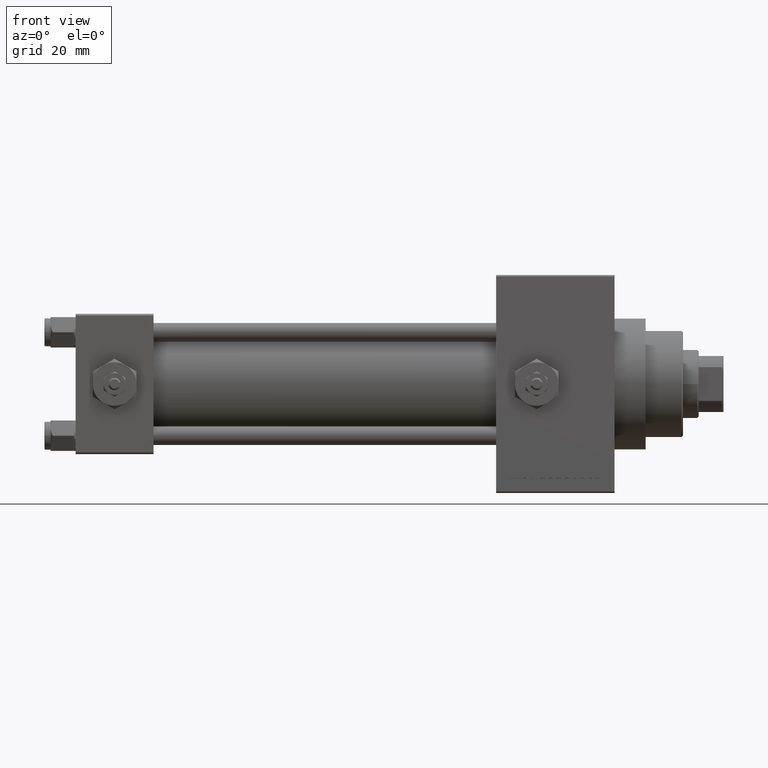
[diagram: clean part render]
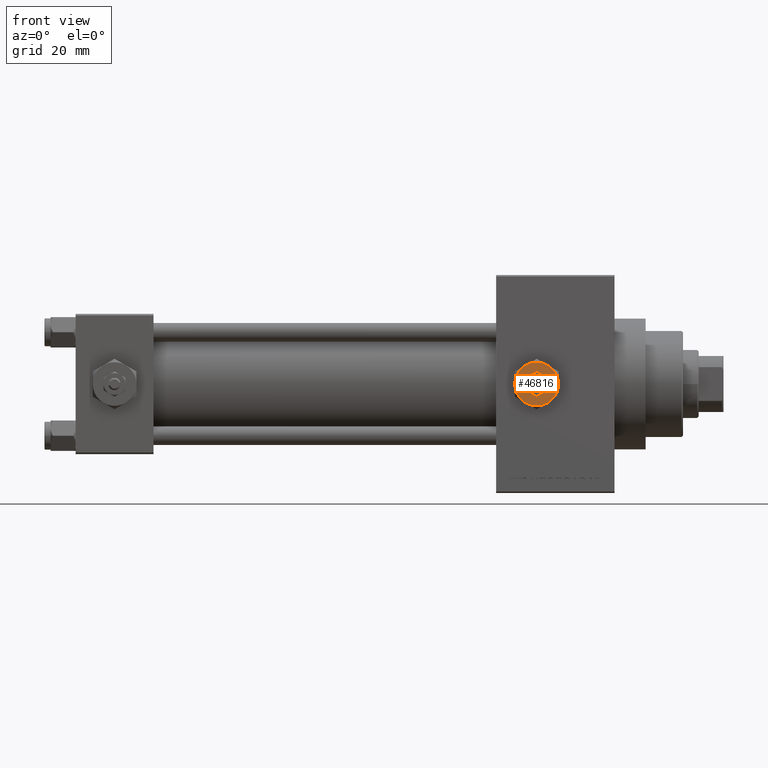
[diagram: same view with one face highlighted and labeled with its STEP entity id]
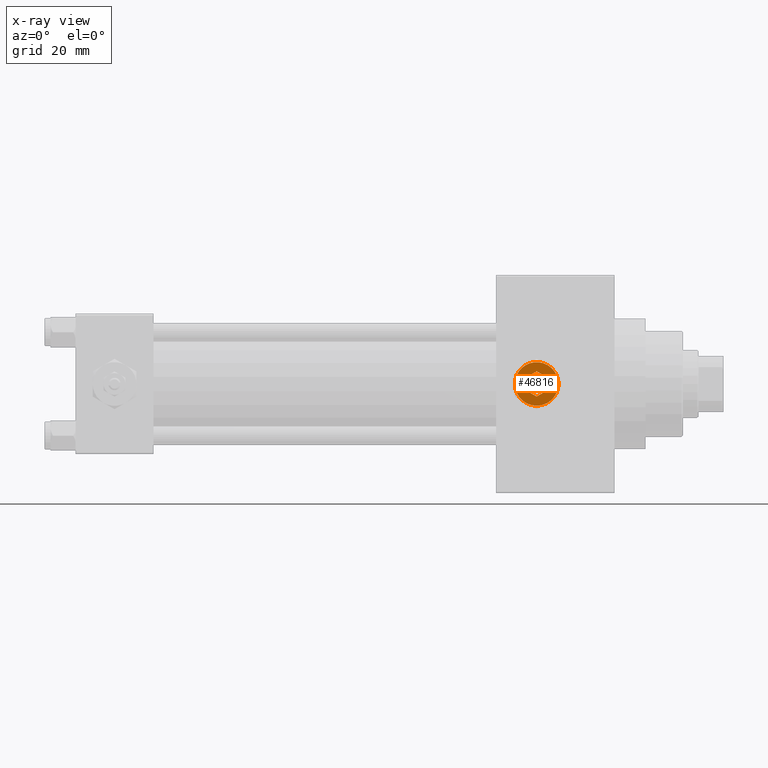
[diagram: x-ray of the same camera — body ghosted, the highlighted face saturated]
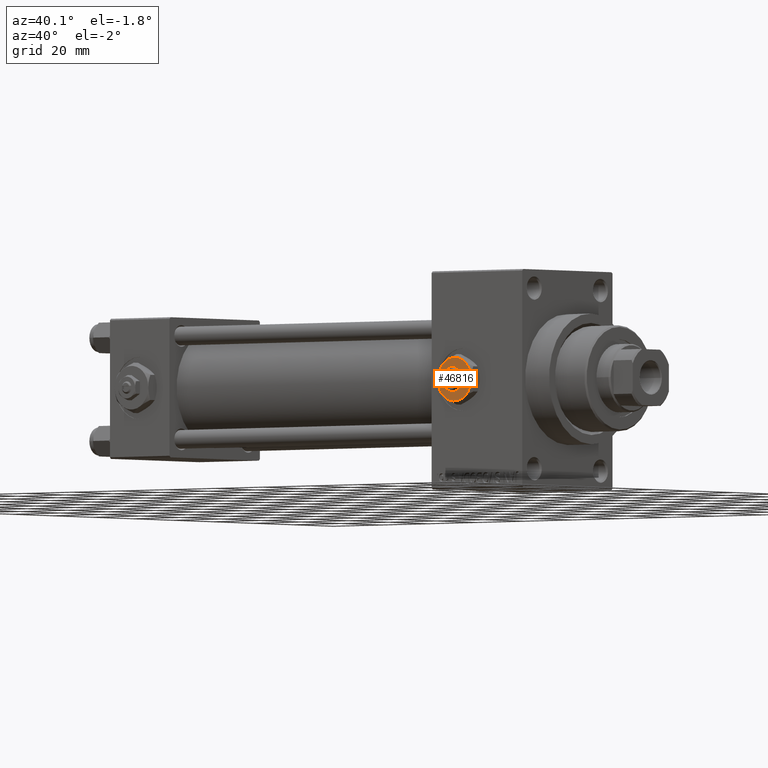
[diagram: same view with one face highlighted and labeled with its STEP entity id]
A machine part, front view. The second image highlights one B-rep face of the part: STEP entity #46816.
The next image is the same camera in x-ray: the body ghosted, the highlighted face saturated — about 0% of this face is hidden behind the body in this view.
A second angle (auxiliary view) of the same face is appended — the face is thin or edge-on in the first view.
In plain terms, the highlighted planar face has unit normal (0, -1, -0).
Its self-contained STEP definition (entity closure, byte-faithful):
#68 = EDGE_CURVE ( 'NONE', #12488, #33414, #36706, .T. ) ;
#657 = CARTESIAN_POINT ( 'NONE',  ( -3.500000000000000888, 6.062177826491073063, 4.299999999999999822 ) ) ;
#1853 = DIRECTION ( 'NONE',  ( 0.000000000000000000, 0.000000000000000000, 1.000000000000000000 ) ) ;
#2415 = DIRECTION ( 'NONE',  ( -0.8660254037844385966, -0.4999999999999998890, 0.000000000000000000 ) ) ;
#2693 = CARTESIAN_POINT ( 'NONE',  ( 3.499999999999999556, -2.020725942163690281, 4.299999999999999822 ) ) ;
#3138 = LINE ( 'NONE', #11086, #16444 ) ;
#3236 = CIRCLE ( 'NONE', #28604, 7.000000000000001776 ) ;
#3278 = ORIENTED_EDGE ( 'NONE', *, *, #5172, .T. ) ;
#3732 = ORIENTED_EDGE ( 'NONE', *, *, #13564, .T. ) ;
#4119 = ORIENTED_EDGE ( 'NONE', *, *, #35119, .F. ) ;
#4243 = CARTESIAN_POINT ( 'NONE',  ( 0.000000000000000000, 0.000000000000000000, 4.299999999999999822 ) ) ;
#5172 = EDGE_CURVE ( 'NONE', #40912, #27487, #22423, .T. ) ;
#6261 = CARTESIAN_POINT ( 'NONE',  ( 3.499999999999998224, 2.020725942163691613, 4.299999999999999822 ) ) ;
#6557 = AXIS2_PLACEMENT_3D ( 'NONE', #21664, #1853, #35864 ) ;
#6699 = CIRCLE ( 'NONE', #42416, 7.000000000000001776 ) ;
#6753 = EDGE_LOOP ( 'NONE', ( #39836, #14773, #46320, #3732, #7876, #3278 ) ) ;
#7790 = EDGE_CURVE ( 'NONE', #22472, #46397, #17051, .T. ) ;
#7837 = DIRECTION ( 'NONE',  ( 1.000000000000000000, 0.000000000000000000, 0.000000000000000000 ) ) ;
#7876 = ORIENTED_EDGE ( 'NONE', *, *, #28682, .T. ) ;
#8552 = ORIENTED_EDGE ( 'NONE', *, *, #7790, .F. ) ;
#8593 = PLANE ( 'NONE',  #23051 ) ;
#9312 = DIRECTION ( 'NONE',  ( 1.000000000000000000, 0.000000000000000000, 0.000000000000000000 ) ) ;
#9386 = VECTOR ( 'NONE', #10427, 1000.000000000000114 ) ;
#9463 = CARTESIAN_POINT ( 'NONE',  ( -2.443687887572056883E-16, -4.041451884327378785, 4.299999999999999822 ) ) ;
#9558 = FACE_BOUND ( 'NONE', #14019, .T. ) ;
#10427 = DIRECTION ( 'NONE',  ( 0.8660254037844388186, 0.4999999999999996669, 0.000000000000000000 ) ) ;
#10823 = EDGE_CURVE ( 'NONE', #33414, #22472, #40282, .T. ) ;
#11086 = CARTESIAN_POINT ( 'NONE',  ( -3.499999999999998668, -2.020725942163689837, 4.299999999999999822 ) ) ;
#11590 = CARTESIAN_POINT ( 'NONE',  ( 0.000000000000000000, 0.000000000000000000, 4.299999999999999822 ) ) ;
#11709 = CARTESIAN_POINT ( 'NONE',  ( -2.443687887572056883E-16, -4.041451884327378785, 4.299999999999999822 ) ) ;
#12072 = DIRECTION ( 'NONE',  ( 1.000000000000000000, 0.000000000000000000, 0.000000000000000000 ) ) ;
#12212 = ORIENTED_EDGE ( 'NONE', *, *, #10823, .F. ) ;
#12410 = VERTEX_POINT ( 'NONE', #657 ) ;
#12414 = VECTOR ( 'NONE', #46133, 1000.000000000000000 ) ;
#12488 = VERTEX_POINT ( 'NONE', #48315 ) ;
#13151 = DIRECTION ( 'NONE',  ( 1.000000000000000000, 0.000000000000000000, 0.000000000000000000 ) ) ;
#13564 = EDGE_CURVE ( 'NONE', #12410, #38199, #6699, .T. ) ;
#14019 = EDGE_LOOP ( 'NONE', ( #8552, #12212, #46997, #36056, #4119, #45015 ) ) ;
#14773 = ORIENTED_EDGE ( 'NONE', *, *, #28702, .T. ) ;
#15559 = CARTESIAN_POINT ( 'NONE',  ( -7.000000000000001776, -2.253471898105739040E-15, 4.299999999999999822 ) ) ;
#15646 = DIRECTION ( 'NONE',  ( -0.8660254037844387076, 0.4999999999999998335, 0.000000000000000000 ) ) ;
#16444 = VECTOR ( 'NONE', #22720, 1000.000000000000227 ) ;
#16889 = CARTESIAN_POINT ( 'NONE',  ( 0.000000000000000000, 4.041451884327380562, 4.299999999999999822 ) ) ;
#16909 = CARTESIAN_POINT ( 'NONE',  ( 6.999999999999994671, 3.004629197474313724E-15, 4.299999999999999822 ) ) ;
#16989 = FACE_OUTER_BOUND ( 'NONE', #6753, .T. ) ;
#17051 = LINE ( 'NONE', #32205, #38365 ) ;
#17084 = EDGE_CURVE ( 'NONE', #46397, #40006, #30712, .T. ) ;
#17857 = LINE ( 'NONE', #9463, #9386 ) ;
#19362 = DIRECTION ( 'NONE',  ( 0.000000000000000000, 0.000000000000000000, 1.000000000000000000 ) ) ;
#20172 = AXIS2_PLACEMENT_3D ( 'NONE', #31881, #44064, #9312 ) ;
#20831 = AXIS2_PLACEMENT_3D ( 'NONE', #11590, #30441, #12072 ) ;
#21586 = CARTESIAN_POINT ( 'NONE',  ( -3.500000000000000000, -6.062177826491073063, 4.299999999999999822 ) ) ;
#21664 = CARTESIAN_POINT ( 'NONE',  ( 0.000000000000000000, 0.000000000000000000, 4.299999999999999822 ) ) ;
#21769 = DIRECTION ( 'NONE',  ( 1.000000000000000000, 0.000000000000000000, 0.000000000000000000 ) ) ;
#22423 = CIRCLE ( 'NONE', #6557, 7.000000000000001776 ) ;
#22472 = VERTEX_POINT ( 'NONE', #16889 ) ;
#22720 = DIRECTION ( 'NONE',  ( 0.8660254037844385966, -0.4999999999999998890, 0.000000000000000000 ) ) ;
#22955 = CARTESIAN_POINT ( 'NONE',  ( 0.000000000000000000, 0.000000000000000000, 4.299999999999999822 ) ) ;
#23051 = AXIS2_PLACEMENT_3D ( 'NONE', #39376, #23705, #23944 ) ;
#23191 = DIRECTION ( 'NONE',  ( 0.000000000000000000, 0.000000000000000000, 1.000000000000000000 ) ) ;
#23705 = DIRECTION ( 'NONE',  ( 0.000000000000000000, 0.000000000000000000, 1.000000000000000000 ) ) ;
#23944 = DIRECTION ( 'NONE',  ( 1.000000000000000000, 0.000000000000000000, -0.000000000000000000 ) ) ;
#24675 = EDGE_CURVE ( 'NONE', #42866, #12410, #46260, .T. ) ;
#24939 = CIRCLE ( 'NONE', #20172, 7.000000000000001776 ) ;
#26003 = CARTESIAN_POINT ( 'NONE',  ( -3.499999999999999112, 2.020725942163690725, 4.299999999999999822 ) ) ;
#27487 = VERTEX_POINT ( 'NONE', #45891 ) ;
#28604 = AXIS2_PLACEMENT_3D ( 'NONE', #44410, #41417, #21769 ) ;
#28682 = EDGE_CURVE ( 'NONE', #38199, #40912, #42432, .T. ) ;
#28702 = EDGE_CURVE ( 'NONE', #38615, #42866, #24939, .T. ) ;
#30441 = DIRECTION ( 'NONE',  ( 0.000000000000000000, 0.000000000000000000, 1.000000000000000000 ) ) ;
#30712 = LINE ( 'NONE', #42165, #12414 ) ;
#30835 = VERTEX_POINT ( 'NONE', #11709 ) ;
#31881 = CARTESIAN_POINT ( 'NONE',  ( 0.000000000000000000, 0.000000000000000000, 4.299999999999999822 ) ) ;
#32205 = CARTESIAN_POINT ( 'NONE',  ( 0.000000000000000000, 4.041451884327380562, 4.299999999999999822 ) ) ;
#32495 = CARTESIAN_POINT ( 'NONE',  ( 3.500000000000000444, 6.062177826491073063, 4.299999999999999822 ) ) ;
#32975 = DIRECTION ( 'NONE',  ( -3.219245568722483357E-16, 1.000000000000000000, 0.000000000000000000 ) ) ;
#33414 = VERTEX_POINT ( 'NONE', #43750 ) ;
#33698 = AXIS2_PLACEMENT_3D ( 'NONE', #22955, #23191, #7837 ) ;
#35119 = EDGE_CURVE ( 'NONE', #40006, #30835, #3138, .T. ) ;
#35864 = DIRECTION ( 'NONE',  ( 1.000000000000000000, 0.000000000000000000, 0.000000000000000000 ) ) ;
#36056 = ORIENTED_EDGE ( 'NONE', *, *, #48371, .F. ) ;
#36706 = LINE ( 'NONE', #2693, #41253 ) ;
#38199 = VERTEX_POINT ( 'NONE', #15559 ) ;
#38365 = VECTOR ( 'NONE', #2415, 1000.000000000000227 ) ;
#38615 = VERTEX_POINT ( 'NONE', #16909 ) ;
#39143 = VECTOR ( 'NONE', #15646, 1000.000000000000114 ) ;
#39376 = CARTESIAN_POINT ( 'NONE',  ( 0.000000000000000000, 0.000000000000000000, 4.299999999999999822 ) ) ;
#39836 = ORIENTED_EDGE ( 'NONE', *, *, #46417, .T. ) ;
#40006 = VERTEX_POINT ( 'NONE', #45385 ) ;
#40282 = LINE ( 'NONE', #6261, #39143 ) ;
#40912 = VERTEX_POINT ( 'NONE', #21586 ) ;
#41253 = VECTOR ( 'NONE', #32975, 1000.000000000000000 ) ;
#41417 = DIRECTION ( 'NONE',  ( 0.000000000000000000, 0.000000000000000000, 1.000000000000000000 ) ) ;
#42165 = CARTESIAN_POINT ( 'NONE',  ( -3.499999999999999112, 2.020725942163690725, 4.299999999999999822 ) ) ;
#42416 = AXIS2_PLACEMENT_3D ( 'NONE', #4243, #19362, #13151 ) ;
#42432 = CIRCLE ( 'NONE', #33698, 7.000000000000001776 ) ;
#42866 = VERTEX_POINT ( 'NONE', #32495 ) ;
#43750 = CARTESIAN_POINT ( 'NONE',  ( 3.499999999999998224, 2.020725942163691613, 4.299999999999999822 ) ) ;
#44064 = DIRECTION ( 'NONE',  ( 0.000000000000000000, 0.000000000000000000, 1.000000000000000000 ) ) ;
#44410 = CARTESIAN_POINT ( 'NONE',  ( 0.000000000000000000, 0.000000000000000000, 4.299999999999999822 ) ) ;
#45015 = ORIENTED_EDGE ( 'NONE', *, *, #17084, .F. ) ;
#45385 = CARTESIAN_POINT ( 'NONE',  ( -3.499999999999998668, -2.020725942163689837, 4.299999999999999822 ) ) ;
#45891 = CARTESIAN_POINT ( 'NONE',  ( 3.500000000000000888, -6.062177826491073951, 4.299999999999999822 ) ) ;
#46133 = DIRECTION ( 'NONE',  ( 1.073081856240828196E-16, -1.000000000000000000, 0.000000000000000000 ) ) ;
#46260 = CIRCLE ( 'NONE', #20831, 7.000000000000001776 ) ;
#46320 = ORIENTED_EDGE ( 'NONE', *, *, #24675, .T. ) ;
#46397 = VERTEX_POINT ( 'NONE', #26003 ) ;
#46417 = EDGE_CURVE ( 'NONE', #27487, #38615, #3236, .T. ) ;
#46816 = ADVANCED_FACE ( 'NONE', ( #16989, #9558 ), #8593, .T. ) ;
#46997 = ORIENTED_EDGE ( 'NONE', *, *, #68, .F. ) ;
#48315 = CARTESIAN_POINT ( 'NONE',  ( 3.500000000000000000, -2.020725942163690281, 4.299999999999999822 ) ) ;
#48371 = EDGE_CURVE ( 'NONE', #30835, #12488, #17857, .T. ) ;